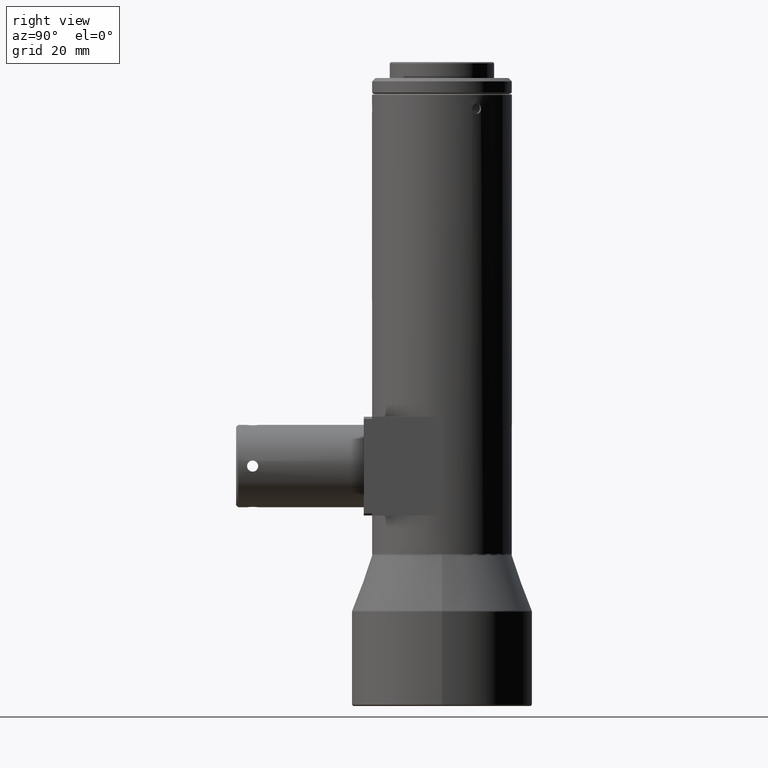
[diagram: clean part render]
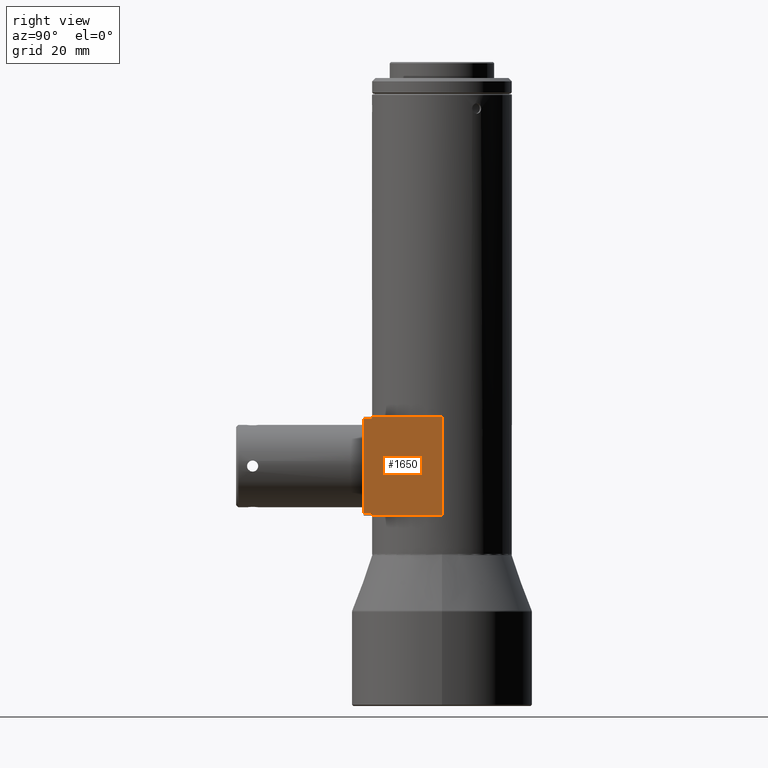
[diagram: same view with one face highlighted and labeled with its STEP entity id]
A machine part, right view. The second image highlights one B-rep face of the part: STEP entity #1650.
In plain terms, the highlighted planar face has unit normal (-1, 0, 0).
Its self-contained STEP definition (entity closure, byte-faithful):
#263 = AXIS2_PLACEMENT_3D ( 'NONE', #4362, #4030, #1260 ) ;
#333 = PLANE ( 'NONE',  #263 ) ;
#508 = ORIENTED_EDGE ( 'NONE', *, *, #1662, .F. ) ;
#532 = EDGE_CURVE ( 'NONE', #2186, #3070, #5483, .T. ) ;
#626 = DIRECTION ( 'NONE',  ( -7.935195319901151300E-016, 6.540723362686795100E-016, -1.000000000000000000 ) ) ;
#655 = VERTEX_POINT ( 'NONE', #1514 ) ;
#677 = CARTESIAN_POINT ( 'NONE',  ( 17.00000000000003600, -2.953765894823703500E-014, 56.12130850271083900 ) ) ;
#832 = CARTESIAN_POINT ( 'NONE',  ( 17.00000000000005300, -4.523539501868533900E-014, 80.12130850271084600 ) ) ;
#842 = VECTOR ( 'NONE', #626, 1000.000000000000000 ) ;
#988 = VECTOR ( 'NONE', #4756, 1000.000000000000000 ) ;
#1099 = ORIENTED_EDGE ( 'NONE', *, *, #3941, .T. ) ;
#1106 = VECTOR ( 'NONE', #4877, 1000.000000000000000 ) ;
#1135 = VECTOR ( 'NONE', #5715, 1000.000000000000000 ) ;
#1218 = VERTEX_POINT ( 'NONE', #2679 ) ;
#1260 = DIRECTION ( 'NONE',  ( 2.775557561561829800E-017, 1.000000000000000000, 6.540723362686794100E-016 ) ) ;
#1357 = CARTESIAN_POINT ( 'NONE',  ( 17.00000000000005300, -16.50000000000003900, 79.57774774010044900 ) ) ;
#1461 = LINE ( 'NONE', #3979, #1106 ) ;
#1514 = CARTESIAN_POINT ( 'NONE',  ( 17.00000000000005300, -17.00000000000003900, 79.57774774010044900 ) ) ;
#1650 = ADVANCED_FACE ( 'NONE', ( #2690 ), #333, .F. ) ;
#1661 = CARTESIAN_POINT ( 'NONE',  ( 17.00000000000003600, -17.00000000000002800, 56.12130850271083200 ) ) ;
#1662 = EDGE_CURVE ( 'NONE', #5471, #655, #4473, .T. ) ;
#1711 = DIRECTION ( 'NONE',  ( 2.775557561561829800E-017, 1.000000000000000000, 6.540723362686794100E-016 ) ) ;
#1920 = ORIENTED_EDGE ( 'NONE', *, *, #3355, .T. ) ;
#1969 = DIRECTION ( 'NONE',  ( 2.775557561562898100E-017, 1.000000000000000000, 6.540723362686804900E-016 ) ) ;
#1970 = LINE ( 'NONE', #1661, #988 ) ;
#2178 = VECTOR ( 'NONE', #1969, 1000.000000000000000 ) ;
#2186 = VERTEX_POINT ( 'NONE', #2910 ) ;
#2387 = ORIENTED_EDGE ( 'NONE', *, *, #532, .T. ) ;
#2477 = CARTESIAN_POINT ( 'NONE',  ( 17.00000000000005300, -4.523539501868533900E-014, 80.12130850271084600 ) ) ;
#2600 = EDGE_CURVE ( 'NONE', #3983, #5471, #5091, .T. ) ;
#2679 = CARTESIAN_POINT ( 'NONE',  ( 17.00000000000005300, -17.00000000000004300, 80.12130850271081800 ) ) ;
#2690 = FACE_OUTER_BOUND ( 'NONE', #2998, .T. ) ;
#2910 = CARTESIAN_POINT ( 'NONE',  ( 17.00000000000003200, -17.00000000000002500, 56.66486926532122900 ) ) ;
#2998 = EDGE_LOOP ( 'NONE', ( #3956, #2387, #4088, #5669, #1099, #1920, #508, #3924 ) ) ;
#3070 = VERTEX_POINT ( 'NONE', #4041 ) ;
#3101 = CARTESIAN_POINT ( 'NONE',  ( 17.00000000000005300, -19.00000000000004300, 79.57774774010044900 ) ) ;
#3233 = LINE ( 'NONE', #832, #4587 ) ;
#3256 = VECTOR ( 'NONE', #1711, 1000.000000000000000 ) ;
#3265 = CARTESIAN_POINT ( 'NONE',  ( 17.00000000000003600, -2.953765894823703500E-014, 56.12130850271083900 ) ) ;
#3355 = EDGE_CURVE ( 'NONE', #1218, #655, #1970, .T. ) ;
#3717 = LINE ( 'NONE', #3889, #5074 ) ;
#3812 = DIRECTION ( 'NONE',  ( 7.935195319901151300E-016, -6.540723362686795100E-016, 1.000000000000000000 ) ) ;
#3837 = EDGE_CURVE ( 'NONE', #4136, #4679, #3717, .T. ) ;
#3889 = CARTESIAN_POINT ( 'NONE',  ( 17.00000000000003600, -2.953765894823703500E-014, 56.12130850271083900 ) ) ;
#3924 = ORIENTED_EDGE ( 'NONE', *, *, #2600, .F. ) ;
#3941 = EDGE_CURVE ( 'NONE', #4679, #1218, #3233, .T. ) ;
#3956 = ORIENTED_EDGE ( 'NONE', *, *, #4912, .F. ) ;
#3979 = CARTESIAN_POINT ( 'NONE',  ( 17.00000000000003200, -16.50000000000002500, 56.66486926532122900 ) ) ;
#3983 = VERTEX_POINT ( 'NONE', #4783 ) ;
#4030 = DIRECTION ( 'NONE',  ( -1.000000000000000000, 2.775557561561778000E-017, 7.927686285214008400E-016 ) ) ;
#4041 = CARTESIAN_POINT ( 'NONE',  ( 17.00000000000003600, -17.00000000000002800, 56.12130850271083200 ) ) ;
#4088 = ORIENTED_EDGE ( 'NONE', *, *, #4237, .T. ) ;
#4136 = VERTEX_POINT ( 'NONE', #3265 ) ;
#4237 = EDGE_CURVE ( 'NONE', #3070, #4136, #5212, .T. ) ;
#4362 = CARTESIAN_POINT ( 'NONE',  ( 17.00000000000005300, -19.00000000000004300, 80.12130850271083200 ) ) ;
#4473 = LINE ( 'NONE', #1357, #3256 ) ;
#4587 = VECTOR ( 'NONE', #5661, 1000.000000000000000 ) ;
#4679 = VERTEX_POINT ( 'NONE', #2477 ) ;
#4756 = DIRECTION ( 'NONE',  ( -7.935195319901151300E-016, 6.540723362686795100E-016, -1.000000000000000000 ) ) ;
#4783 = CARTESIAN_POINT ( 'NONE',  ( 17.00000000000003200, -19.00000000000002500, 56.66486926532122900 ) ) ;
#4877 = DIRECTION ( 'NONE',  ( -2.775557561561829800E-017, -1.000000000000000000, -6.540723362686794100E-016 ) ) ;
#4912 = EDGE_CURVE ( 'NONE', #2186, #3983, #1461, .T. ) ;
#5074 = VECTOR ( 'NONE', #3812, 1000.000000000000000 ) ;
#5091 = LINE ( 'NONE', #5264, #1135 ) ;
#5212 = LINE ( 'NONE', #677, #2178 ) ;
#5264 = CARTESIAN_POINT ( 'NONE',  ( 17.00000000000005300, -19.00000000000004300, 80.12130850271083200 ) ) ;
#5441 = CARTESIAN_POINT ( 'NONE',  ( 17.00000000000003600, -17.00000000000002800, 56.12130850271083200 ) ) ;
#5471 = VERTEX_POINT ( 'NONE', #3101 ) ;
#5483 = LINE ( 'NONE', #5441, #842 ) ;
#5661 = DIRECTION ( 'NONE',  ( -2.775557561562898100E-017, -1.000000000000000000, -6.540723362686804900E-016 ) ) ;
#5669 = ORIENTED_EDGE ( 'NONE', *, *, #3837, .T. ) ;
#5715 = DIRECTION ( 'NONE',  ( 7.927686285214008400E-016, -6.540723362686797000E-016, 1.000000000000000000 ) ) ;